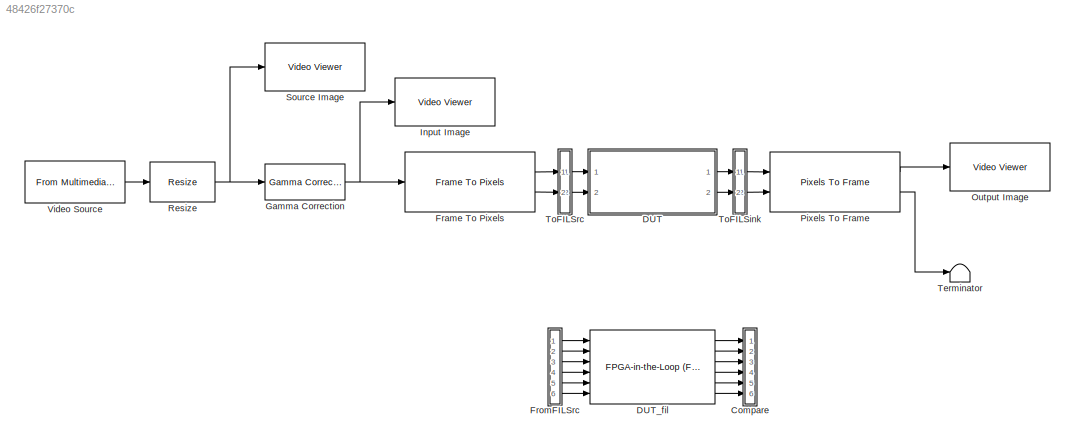
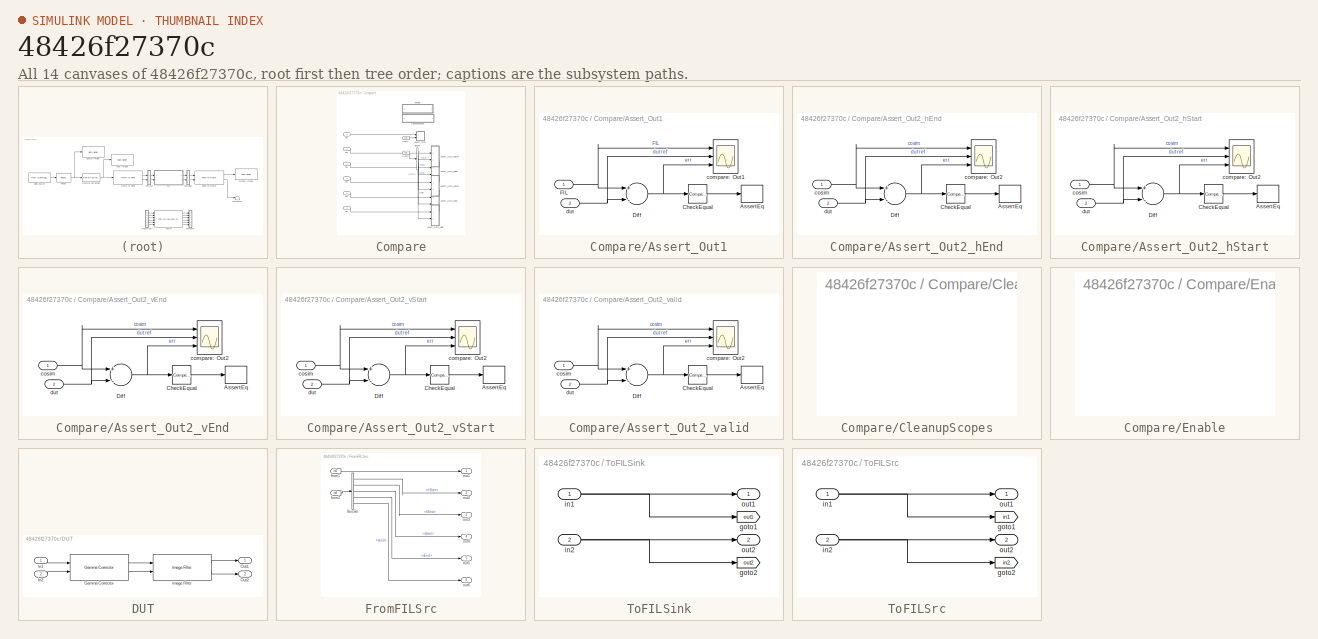
[diagram: thumbnail index - all 14 canvases of the model, root first then tree order]
MODEL slx_48426f27370c
KIND model
CONFIG AbsTol = auto
CONFIG FixedStep = auto
CONFIG MaxStep = auto
CONFIG MinStep = auto
CONFIG PreLoadFcn = H = fspecial('unsharp')
CONFIG RelTol = 1e-3
CONFIG SampleTimeConstraint = Unconstrained
CONFIG Solver = ode45
CONFIG SolverMode = Auto
CONFIG SolverName = ode45
CONFIG StartTime = 0.0
CONFIG StopTime = 10.0
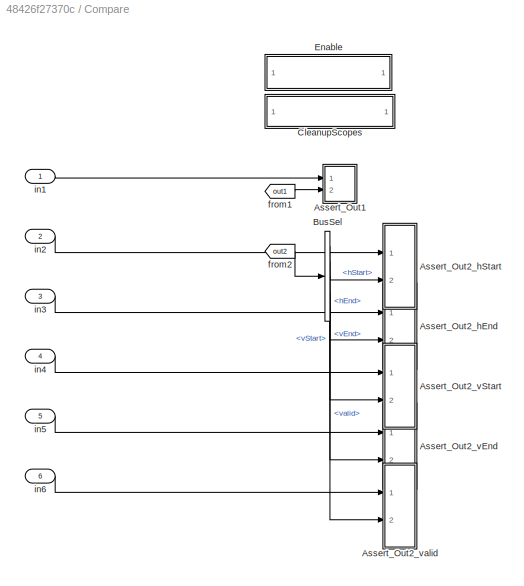
BLOCK [SubSystem] Compare
  Ports = [6]
  RequestExecContextInheritance = off
BLOCK [SubSystem] Compare/Assert_Out1
  Ports = [2]
  RequestExecContextInheritance = off
BLOCK [Assertion] Compare/Assert_Out1/AssertEq
  StopWhenAssertionFail = off
BLOCK [Reference] Compare/Assert_Out1/CheckEqual  REF=simulink/Logic and Bit
Operations/Compare
To Zero
  OutDataTypeStr = uint8
  Ports = [1, 1]
  SourceBlock = simulink/Logic and Bit\nOperations/Compare\nTo Zero
  SourceType = Compare To Zero
  ZeroCross = off
  relop = ==
BLOCK [Sum] Compare/Assert_Out1/Diff
  InputSameDT = off
  Inputs = +-
  OutDataTypeStr = Inherit: Inherit via internal rule
  Ports = [2, 1]
  SaturateOnIntegerOverflow = off
BLOCK [Inport] Compare/Assert_Out1/FIL
  IconDisplay = Port number
BLOCK [Scope] Compare/Assert_Out1/compare: Out1
  DataFormat = StructureWithTime
  Floating = off
  LimitDataPoints = off
  NumInputPorts = 3
  Ports = [3]
  YMax = 5~5~5
  YMin = -5~-5~-5
BLOCK [Inport] Compare/Assert_Out1/dut
  IconDisplay = Port number
  Port = 2
BLOCK [SubSystem] Compare/Assert_Out2_hEnd
  Ports = [2]
  RequestExecContextInheritance = off
BLOCK [Assertion] Compare/Assert_Out2_hEnd/AssertEq
  StopWhenAssertionFail = off
BLOCK [Reference] Compare/Assert_Out2_hEnd/CheckEqual  REF=simulink/Logic and Bit
Operations/Compare
To Zero
  OutDataTypeStr = uint8
  Ports = [1, 1]
  SourceBlock = simulink/Logic and Bit\nOperations/Compare\nTo Zero
  SourceType = Compare To Zero
  ZeroCross = off
  relop = ==
BLOCK [Sum] Compare/Assert_Out2_hEnd/Diff
  InputSameDT = off
  Inputs = +-
  OutDataTypeStr = Inherit: Inherit via internal rule
  Ports = [2, 1]
  SaturateOnIntegerOverflow = off
BLOCK [Scope] Compare/Assert_Out2_hEnd/compare: Out2
  DataFormat = StructureWithTime
  Floating = off
  LimitDataPoints = off
  NumInputPorts = 3
  Ports = [3]
  YMax = 5~5~5
  YMin = -5~-5~-5
BLOCK [Inport] Compare/Assert_Out2_hEnd/cosim
  IconDisplay = Port number
BLOCK [Inport] Compare/Assert_Out2_hEnd/dut
  IconDisplay = Port number
  Port = 2
BLOCK [SubSystem] Compare/Assert_Out2_hStart
  Ports = [2]
  RequestExecContextInheritance = off
BLOCK [Assertion] Compare/Assert_Out2_hStart/AssertEq
  StopWhenAssertionFail = off
BLOCK [Reference] Compare/Assert_Out2_hStart/CheckEqual  REF=simulink/Logic and Bit
Operations/Compare
To Zero
  OutDataTypeStr = uint8
  Ports = [1, 1]
  SourceBlock = simulink/Logic and Bit\nOperations/Compare\nTo Zero
  SourceType = Compare To Zero
  ZeroCross = off
  relop = ==
BLOCK [Sum] Compare/Assert_Out2_hStart/Diff
  InputSameDT = off
  Inputs = +-
  OutDataTypeStr = Inherit: Inherit via internal rule
  Ports = [2, 1]
  SaturateOnIntegerOverflow = off
BLOCK [Scope] Compare/Assert_Out2_hStart/compare: Out2
  DataFormat = StructureWithTime
  Floating = off
  LimitDataPoints = off
  NumInputPorts = 3
  Ports = [3]
  YMax = 5~5~5
  YMin = -5~-5~-5
BLOCK [Inport] Compare/Assert_Out2_hStart/cosim
  IconDisplay = Port number
BLOCK [Inport] Compare/Assert_Out2_hStart/dut
  IconDisplay = Port number
  Port = 2
BLOCK [SubSystem] Compare/Assert_Out2_vEnd
  Ports = [2]
  RequestExecContextInheritance = off
BLOCK [Assertion] Compare/Assert_Out2_vEnd/AssertEq
  StopWhenAssertionFail = off
BLOCK [Reference] Compare/Assert_Out2_vEnd/CheckEqual  REF=simulink/Logic and Bit
Operations/Compare
To Zero
  OutDataTypeStr = uint8
  Ports = [1, 1]
  SourceBlock = simulink/Logic and Bit\nOperations/Compare\nTo Zero
  SourceType = Compare To Zero
  ZeroCross = off
  relop = ==
BLOCK [Sum] Compare/Assert_Out2_vEnd/Diff
  InputSameDT = off
  Inputs = +-
  OutDataTypeStr = Inherit: Inherit via internal rule
  Ports = [2, 1]
  SaturateOnIntegerOverflow = off
BLOCK [Scope] Compare/Assert_Out2_vEnd/compare: Out2
  DataFormat = StructureWithTime
  Floating = off
  LimitDataPoints = off
  NumInputPorts = 3
  Ports = [3]
  YMax = 5~5~5
  YMin = -5~-5~-5
BLOCK [Inport] Compare/Assert_Out2_vEnd/cosim
  IconDisplay = Port number
BLOCK [Inport] Compare/Assert_Out2_vEnd/dut
  IconDisplay = Port number
  Port = 2
BLOCK [SubSystem] Compare/Assert_Out2_vStart
  Ports = [2]
  RequestExecContextInheritance = off
BLOCK [Assertion] Compare/Assert_Out2_vStart/AssertEq
  StopWhenAssertionFail = off
BLOCK [Reference] Compare/Assert_Out2_vStart/CheckEqual  REF=simulink/Logic and Bit
Operations/Compare
To Zero
  OutDataTypeStr = uint8
  Ports = [1, 1]
  SourceBlock = simulink/Logic and Bit\nOperations/Compare\nTo Zero
  SourceType = Compare To Zero
  ZeroCross = off
  relop = ==
BLOCK [Sum] Compare/Assert_Out2_vStart/Diff
  InputSameDT = off
  Inputs = +-
  OutDataTypeStr = Inherit: Inherit via internal rule
  Ports = [2, 1]
  SaturateOnIntegerOverflow = off
BLOCK [Scope] Compare/Assert_Out2_vStart/compare: Out2
  DataFormat = StructureWithTime
  Floating = off
  LimitDataPoints = off
  NumInputPorts = 3
  Ports = [3]
  YMax = 5~5~5
  YMin = -5~-5~-5
BLOCK [Inport] Compare/Assert_Out2_vStart/cosim
  IconDisplay = Port number
BLOCK [Inport] Compare/Assert_Out2_vStart/dut
  IconDisplay = Port number
  Port = 2
BLOCK [SubSystem] Compare/Assert_Out2_valid
  Ports = [2]
  RequestExecContextInheritance = off
BLOCK [Assertion] Compare/Assert_Out2_valid/AssertEq
  StopWhenAssertionFail = off
BLOCK [Reference] Compare/Assert_Out2_valid/CheckEqual  REF=simulink/Logic and Bit
Operations/Compare
To Zero
  OutDataTypeStr = uint8
  Ports = [1, 1]
  SourceBlock = simulink/Logic and Bit\nOperations/Compare\nTo Zero
  SourceType = Compare To Zero
  ZeroCross = off
  relop = ==
BLOCK [Sum] Compare/Assert_Out2_valid/Diff
  InputSameDT = off
  Inputs = +-
  OutDataTypeStr = Inherit: Inherit via internal rule
  Ports = [2, 1]
  SaturateOnIntegerOverflow = off
BLOCK [Scope] Compare/Assert_Out2_valid/compare: Out2
  DataFormat = StructureWithTime
  Floating = off
  LimitDataPoints = off
  NumInputPorts = 3
  Ports = [3]
  YMax = 5~5~5
  YMin = -5~-5~-5
BLOCK [Inport] Compare/Assert_Out2_valid/cosim
  IconDisplay = Port number
BLOCK [Inport] Compare/Assert_Out2_valid/dut
  IconDisplay = Port number
  Port = 2
BLOCK [BusSelector] Compare/BusSel
  OutputSignals = hStart,hEnd,vStart,vEnd,valid
  Ports = [1, 5]
BLOCK [SubSystem] Compare/CleanupScopes
  OpenFcn = blkName = gcb;\nidx = regexp(blkName, '/CleanupScopes$', 'once');\nblkParent = blkName(1:idx-1);\nblks=find_system(blkParent, 'blocktype', 'Scope');\ne = get_param(blks{1}, 'Open');\nif strcmp(e, 'on'), f= 'off'; else f = 'on'; end\nfor ii=1:length(blks), set_param(blks{ii}, 'Open', f); end; drawnow;
  Ports = []
  RequestExecContextInheritance = off
BLOCK [SubSystem] Compare/Enable
  OpenFcn = blkName = gcb;\nidx = regexp(blkName, '/Enable$', 'once');\nblkParent = blkName(1:idx-1);\nblks=find_system(blkParent, 'blocktype', 'Assertion');\ne = get_param(blks{1}, 'Enabled');\nif strcmp(e, 'on'), f= 'off';, else, f = 'on';, end\nfor ii=1:length(blks), set_param(blks{ii}, 'Enabled', f);, end\ndispMsg = sprintf('disp([''Double click to turn %s \\n all Assertions''])', upper(e));\nset_param(gcb, 'Mask...<+19ch>
  Ports = []
  RequestExecContextInheritance = off
BLOCK [From] Compare/from1
  GotoTag = out1
  TagVisibility = global
BLOCK [From] Compare/from2
  GotoTag = out2
  TagVisibility = global
BLOCK [Inport] Compare/in1
  IconDisplay = Port number
BLOCK [Inport] Compare/in2
  IconDisplay = Port number
  Port = 2
BLOCK [Inport] Compare/in3
  IconDisplay = Port number
  Port = 3
BLOCK [Inport] Compare/in4
  IconDisplay = Port number
  Port = 4
BLOCK [Inport] Compare/in5
  IconDisplay = Port number
  Port = 5
BLOCK [Inport] Compare/in6
  IconDisplay = Port number
  Port = 6
BLOCK [SubSystem] DUT
  Ports = [2, 2]
  RequestExecContextInheritance = off
BLOCK [Reference] DUT/Gamma Corrector  REF=visionhdlconversions/Gamma Corrector
  BreakPoint = 0.018
  Correction = Gamma
  Gamma = 2.2
  LinearSegment = on
  Ports = [2, 2]
  SimulateUsing = Code generation
  SourceBlock = visionhdlconversions/Gamma Corrector
  SourceType = visionhdl.GammaCorrector
BLOCK [Reference] DUT/Image Filter  REF=visionhdlfilter/Image Filter
  CoeffDataTypeStr = fixdt(1,8,4)
  CoeffMax = []
  CoeffMin = []
  Coefficients = H
  LineBufferSize = 2048
  LockScale = off
  OutputDataTypeStr = Inherit: Same as first input
  OutputMax = []
  OutputMin = []
  PaddingMethod = Replicate
  PaddingValue = 0
  Ports = [2, 2]
  SimulateUsing = Code generation
  SourceBlock = visionhdlfilter/Image Filter
  SourceType = visionhdl.ImageFilter
  overflowMode = on
  roundingMode = Floor
BLOCK [Inport] DUT/In1
  IconDisplay = Port number
BLOCK [Inport] DUT/In2
  IconDisplay = Port number
  Port = 2
BLOCK [Outport] DUT/Out1
  IconDisplay = Port number
BLOCK [Outport] DUT/Out2
  IconDisplay = Port number
  Port = 2
BLOCK [Reference] DUT_fil  REF=fillib/FPGA-in-the-Loop (FIL)
  ForceInterfaceUpdate = 0.90579
  Ports = [6, 6]
  SourceBlock = fillib/FPGA-in-the-Loop (FIL)
  SourceType = FPGA-in-the-Loop (FIL)
  UserDataPersistent = on
BLOCK [Reference] Frame To Pixels  REF=visionhdlio/Frame To Pixels
  ActivePixelsPerLine = 32
  ActiveVideoLines = 18
  FrontPorch = 5
  NumComponents = 1
  Ports = [1, 2]
  SampleTime = 0
  SourceBlock = visionhdlio/Frame To Pixels
  SourceType = Frame To Pixels
  StartingActiveLine = 6
  TotalPixelsPerLine = 42
  TotalVideoLines = 28
  VideoFormat = 1080p
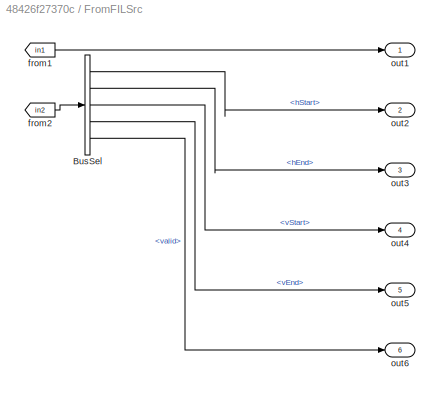
BLOCK [SubSystem] FromFILSrc
  Ports = [0, 6]
  RequestExecContextInheritance = off
BLOCK [BusSelector] FromFILSrc/BusSel
  OutputSignals = hStart,hEnd,vStart,vEnd,valid
  Ports = [1, 5]
BLOCK [From] FromFILSrc/from1
  GotoTag = in1
BLOCK [From] FromFILSrc/from2
  GotoTag = in2
BLOCK [Outport] FromFILSrc/out1
  IconDisplay = Port number
BLOCK [Outport] FromFILSrc/out2
  IconDisplay = Port number
  Port = 2
BLOCK [Outport] FromFILSrc/out3
  IconDisplay = Port number
  Port = 3
BLOCK [Outport] FromFILSrc/out4
  IconDisplay = Port number
  Port = 4
BLOCK [Outport] FromFILSrc/out5
  IconDisplay = Port number
  Port = 5
BLOCK [Outport] FromFILSrc/out6
  IconDisplay = Port number
  Port = 6
BLOCK [Reference] Gamma Correction  REF=visionconversions/Gamma Correction
  Ports = [1, 1]
  SourceBlock = visionconversions/Gamma Correction
  SourceType = Gamma Correction
  breakPoint = 0.018
  gamma = 2.2
  linearSegment = on
  operation = De-gamma
BLOCK [Reference] Input Image  REF=visionsinks/Video Viewer
  AxisZoom = on
  DefaultConfigurationName = vipscopes.VideoViewerScopeCfg
  FigPos = [366 381 334 275]
  OpenAtMdlStart = on
  Ports = [1]
  SourceBlock = visionsinks/Video Viewer
  SourceType = Video Viewer
  UserDataPersistent = on
  colormapValue = gray(256)
  imagePorts = One multidimensional signal
  inputType = Obsolete7b
  maxInputVal = 255
  minInputVal = 0
  specRange = off
  trueSizedOnce = off
  useColorMap = off
BLOCK [Reference] Output Image  REF=visionsinks/Video Viewer
  AxisZoom = on
  DefaultConfigurationName = vipscopes.VideoViewerScopeCfg
  FigPos = [709 384 334 275]
  OpenAtMdlStart = on
  Ports = [1]
  SourceBlock = visionsinks/Video Viewer
  SourceType = Video Viewer
  UserDataPersistent = on
  colormapValue = gray(256)
  imagePorts = One multidimensional signal
  inputType = Obsolete7b
  maxInputVal = 255
  minInputVal = 0
  specRange = off
  trueSizedOnce = off
  useColorMap = off
BLOCK [Reference] Pixels To Frame  REF=visionhdlio/Pixels To Frame
  ActivePixelsPerLine = 32
  ActiveVideoLines = 18
  NumComponents = 1
  Ports = [2, 2]
  SourceBlock = visionhdlio/Pixels To Frame
  SourceType = Pixels To Frame
  TotalPixelsPerLine = 42
  TotalVideoLines = 28
  VideoFormat = 1080p
BLOCK [Reference] Resize  REF=visiongeotforms/Resize
  LockScale = off
  Ports = [1, 1]
  SourceBlock = visiongeotforms/Resize
  SourceType = Resize
  accumFracLength = 10
  accumMode = Same as product output
  accumWordLength = 32
  antialias = on
  firstCoeffFracLength = 31
  firstCoeffMode = Same word length as input
  firstCoeffWordLength = 32
  interp_method = Bilinear
  outCols = 25
  outRows = 25
  outRowsCols = [1080 1920]
  outputFracLength = 10
  outputMode = Same as input
  outputWordLength = 32
  overflowMode = on
  prodOutputFracLength = 10
  prodOutputMode = Binary point scaling
  prodOutputWordLength = 32
  rfactor = [200 150]
  roiFlag = off
  roundingMode = Nearest
  specify = Number of output rows and columns
  useROI = off
BLOCK [Reference] Source Image  REF=visionsinks/Video Viewer
  AxisZoom = on
  DefaultConfigurationName = vipscopes.VideoViewerScopeCfg
  FigPos = [21 379 334 275]
  OpenAtMdlStart = on
  Ports = [1]
  SourceBlock = visionsinks/Video Viewer
  SourceType = Video Viewer
  UserDataPersistent = on
  colormapValue = gray(256)
  imagePorts = One multidimensional signal
  inputType = Obsolete7b
  maxInputVal = 255
  minInputVal = 0
  specRange = off
  trueSizedOnce = off
  useColorMap = off
BLOCK [Terminator] Terminator
BLOCK [SubSystem] ToFILSink
  Ports = [2, 2]
  RequestExecContextInheritance = off
BLOCK [Goto] ToFILSink/goto1
  GotoTag = out1
  TagVisibility = global
BLOCK [Goto] ToFILSink/goto2
  GotoTag = out2
  TagVisibility = global
BLOCK [Inport] ToFILSink/in1
  IconDisplay = Port number
BLOCK [Inport] ToFILSink/in2
  IconDisplay = Port number
  Port = 2
BLOCK [Outport] ToFILSink/out1
  IconDisplay = Port number
BLOCK [Outport] ToFILSink/out2
  IconDisplay = Port number
  Port = 2
BLOCK [SubSystem] ToFILSrc
  Ports = [2, 2]
  RequestExecContextInheritance = off
BLOCK [Goto] ToFILSrc/goto1
  GotoTag = in1
  TagVisibility = global
BLOCK [Goto] ToFILSrc/goto2
  GotoTag = in2
  TagVisibility = global
BLOCK [Inport] ToFILSrc/in1
  IconDisplay = Port number
BLOCK [Inport] ToFILSrc/in2
  IconDisplay = Port number
  Port = 2
BLOCK [Outport] ToFILSrc/out1
  IconDisplay = Port number
BLOCK [Outport] ToFILSrc/out2
  IconDisplay = Port number
  Port = 2
BLOCK [Reference] Video Source  REF=dspvision/From Multimedia File
  Ports = [0, 1]
  SourceBlock = dspvision/From Multimedia File
  SourceType = From Multimedia File
  audioDataType = int16
  audioFrameSize = 1024
  colorVideoFormat = One multidimensional signal
  computeAudioFrameSize = off
  dataOrg = Column-major
  fourcc = Intensity
  inheritSampleTime = off
  inputFilename = rhinos.avi
  isIntensityVideo = off
  loop = on
  noAudioOutput = off
  numPlays = inf
  outSamplingMode = Sample based
  outputEOF = off
  outputStreams = Video only
  userDefinedSampleTime = 1125*2200  %402*324
  videoDataType = uint8
LINE Compare/Assert_Out1/CheckEqual:1 -> Compare/Assert_Out1/AssertEq:1
NET Compare/Assert_Out1/Diff:1 -> Compare/Assert_Out1/CheckEqual:1, Compare/Assert_Out1/compare: Out1:3
NET Compare/Assert_Out1/FIL:1 -> Compare/Assert_Out1/Diff:1, Compare/Assert_Out1/compare: Out1:1
NET Compare/Assert_Out1/dut:1 -> Compare/Assert_Out1/Diff:2, Compare/Assert_Out1/compare: Out1:2
LINE Compare/Assert_Out2_hEnd/CheckEqual:1 -> Compare/Assert_Out2_hEnd/AssertEq:1
NET Compare/Assert_Out2_hEnd/Diff:1 -> Compare/Assert_Out2_hEnd/CheckEqual:1, Compare/Assert_Out2_hEnd/compare: Out2:3
NET Compare/Assert_Out2_hEnd/cosim:1 -> Compare/Assert_Out2_hEnd/Diff:1, Compare/Assert_Out2_hEnd/compare: Out2:1
NET Compare/Assert_Out2_hEnd/dut:1 -> Compare/Assert_Out2_hEnd/Diff:2, Compare/Assert_Out2_hEnd/compare: Out2:2
LINE Compare/Assert_Out2_hStart/CheckEqual:1 -> Compare/Assert_Out2_hStart/AssertEq:1
NET Compare/Assert_Out2_hStart/Diff:1 -> Compare/Assert_Out2_hStart/CheckEqual:1, Compare/Assert_Out2_hStart/compare: Out2:3
NET Compare/Assert_Out2_hStart/cosim:1 -> Compare/Assert_Out2_hStart/Diff:1, Compare/Assert_Out2_hStart/compare: Out2:1
NET Compare/Assert_Out2_hStart/dut:1 -> Compare/Assert_Out2_hStart/Diff:2, Compare/Assert_Out2_hStart/compare: Out2:2
LINE Compare/Assert_Out2_vEnd/CheckEqual:1 -> Compare/Assert_Out2_vEnd/AssertEq:1
NET Compare/Assert_Out2_vEnd/Diff:1 -> Compare/Assert_Out2_vEnd/CheckEqual:1, Compare/Assert_Out2_vEnd/compare: Out2:3
NET Compare/Assert_Out2_vEnd/cosim:1 -> Compare/Assert_Out2_vEnd/Diff:1, Compare/Assert_Out2_vEnd/compare: Out2:1
NET Compare/Assert_Out2_vEnd/dut:1 -> Compare/Assert_Out2_vEnd/Diff:2, Compare/Assert_Out2_vEnd/compare: Out2:2
LINE Compare/Assert_Out2_vStart/CheckEqual:1 -> Compare/Assert_Out2_vStart/AssertEq:1
NET Compare/Assert_Out2_vStart/Diff:1 -> Compare/Assert_Out2_vStart/CheckEqual:1, Compare/Assert_Out2_vStart/compare: Out2:3
NET Compare/Assert_Out2_vStart/cosim:1 -> Compare/Assert_Out2_vStart/Diff:1, Compare/Assert_Out2_vStart/compare: Out2:1
NET Compare/Assert_Out2_vStart/dut:1 -> Compare/Assert_Out2_vStart/Diff:2, Compare/Assert_Out2_vStart/compare: Out2:2
LINE Compare/Assert_Out2_valid/CheckEqual:1 -> Compare/Assert_Out2_valid/AssertEq:1
NET Compare/Assert_Out2_valid/Diff:1 -> Compare/Assert_Out2_valid/CheckEqual:1, Compare/Assert_Out2_valid/compare: Out2:3
NET Compare/Assert_Out2_valid/cosim:1 -> Compare/Assert_Out2_valid/Diff:1, Compare/Assert_Out2_valid/compare: Out2:1
NET Compare/Assert_Out2_valid/dut:1 -> Compare/Assert_Out2_valid/Diff:2, Compare/Assert_Out2_valid/compare: Out2:2
LINE Compare/BusSel:1 -> Compare/Assert_Out2_hStart:2
LINE Compare/BusSel:2 -> Compare/Assert_Out2_hEnd:2
LINE Compare/BusSel:3 -> Compare/Assert_Out2_vStart:2
LINE Compare/BusSel:4 -> Compare/Assert_Out2_vEnd:2
LINE Compare/BusSel:5 -> Compare/Assert_Out2_valid:2
LINE Compare/from1:1 -> Compare/Assert_Out1:2
LINE Compare/from2:1 -> Compare/BusSel:1
LINE Compare/in1:1 -> Compare/Assert_Out1:1
LINE Compare/in2:1 -> Compare/Assert_Out2_hStart:1
LINE Compare/in3:1 -> Compare/Assert_Out2_hEnd:1
LINE Compare/in4:1 -> Compare/Assert_Out2_vStart:1
LINE Compare/in5:1 -> Compare/Assert_Out2_vEnd:1
LINE Compare/in6:1 -> Compare/Assert_Out2_valid:1
LINE DUT/Gamma Corrector:1 -> DUT/Image Filter:1
LINE DUT/Gamma Corrector:2 -> DUT/Image Filter:2
LINE DUT/Image Filter:1 -> DUT/Out1:1
LINE DUT/Image Filter:2 -> DUT/Out2:1
LINE DUT/In1:1 -> DUT/Gamma Corrector:1
LINE DUT/In2:1 -> DUT/Gamma Corrector:2
LINE DUT:1 -> ToFILSink:1
LINE DUT:2 -> ToFILSink:2
LINE DUT_fil:1 -> Compare:1
LINE DUT_fil:2 -> Compare:2
LINE DUT_fil:3 -> Compare:3
LINE DUT_fil:4 -> Compare:4
LINE DUT_fil:5 -> Compare:5
LINE DUT_fil:6 -> Compare:6
LINE Frame To Pixels:1 -> ToFILSrc:1
LINE Frame To Pixels:2 -> ToFILSrc:2
LINE FromFILSrc/BusSel:1 -> FromFILSrc/out2:1
LINE FromFILSrc/BusSel:2 -> FromFILSrc/out3:1
LINE FromFILSrc/BusSel:3 -> FromFILSrc/out4:1
LINE FromFILSrc/BusSel:4 -> FromFILSrc/out5:1
LINE FromFILSrc/BusSel:5 -> FromFILSrc/out6:1
LINE FromFILSrc/from1:1 -> FromFILSrc/out1:1
LINE FromFILSrc/from2:1 -> FromFILSrc/BusSel:1
LINE FromFILSrc:1 -> DUT_fil:1
LINE FromFILSrc:2 -> DUT_fil:2
LINE FromFILSrc:3 -> DUT_fil:3
LINE FromFILSrc:4 -> DUT_fil:4
LINE FromFILSrc:5 -> DUT_fil:5
LINE FromFILSrc:6 -> DUT_fil:6
NET Gamma Correction:1 -> Frame To Pixels:1, Input Image:1
LINE Pixels To Frame:1 -> Output Image:1
LINE Pixels To Frame:2 -> Terminator:1
NET Resize:1 -> Gamma Correction:1, Source Image:1
NET ToFILSink/in1:1 -> ToFILSink/goto1:1, ToFILSink/out1:1
NET ToFILSink/in2:1 -> ToFILSink/goto2:1, ToFILSink/out2:1
LINE ToFILSink:1 -> Pixels To Frame:1
LINE ToFILSink:2 -> Pixels To Frame:2
NET ToFILSrc/in1:1 -> ToFILSrc/goto1:1, ToFILSrc/out1:1
NET ToFILSrc/in2:1 -> ToFILSrc/goto2:1, ToFILSrc/out2:1
LINE ToFILSrc:1 -> DUT:1
LINE ToFILSrc:2 -> DUT:2
LINE Video Source:1 -> Resize:1
note: NET lines group one-source signal fan-out (src -> all destinations, sorted); 1:1 wires keep LINE
